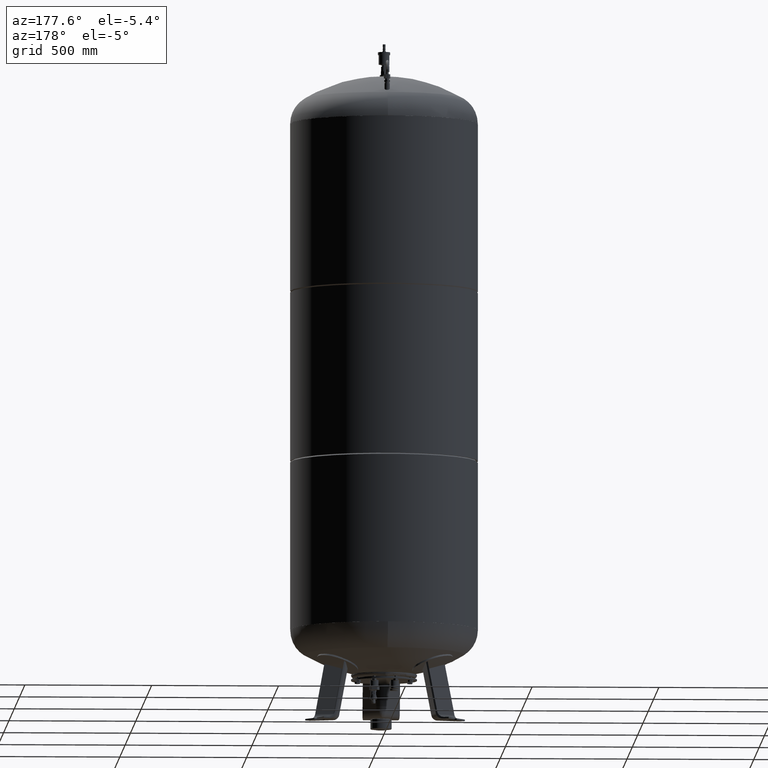
[diagram: clean part render]
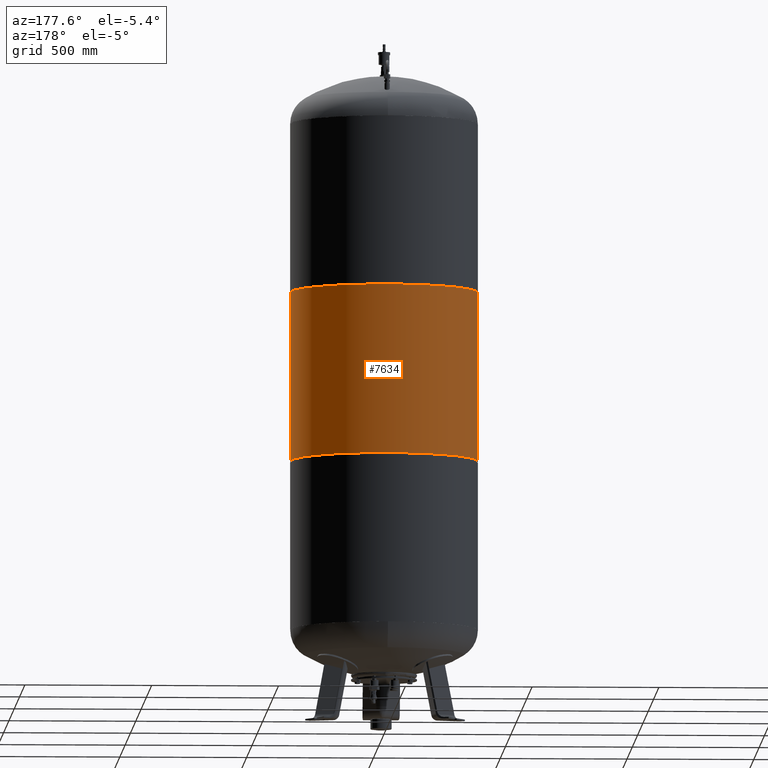
[diagram: same view with one face highlighted and labeled with its STEP entity id]
A machine part, auxiliary view. The second image highlights one B-rep face of the part: STEP entity #7634.
In plain terms, the highlighted cylindrical surface (partial cylindrical patch) has radius 370 mm, axis along (0, 0, 1).
Its self-contained STEP definition (entity closure, byte-faithful):
#7434=CARTESIAN_POINT('',(369.999999999999490,0.0,1703.666666666666700));
#7435=VERTEX_POINT('',#7434);
#7436=CARTESIAN_POINT('',(369.999999999999370,0.0,1036.333333333333000));
#7437=VERTEX_POINT('',#7436);
#7438=CARTESIAN_POINT('',(369.999999999999490,0.0,1703.666666666666700));
#7439=DIRECTION('',(0.0,0.0,-1.0));
#7440=VECTOR('',#7439,667.333333333333710);
#7441=LINE('',#7438,#7440);
#7442=EDGE_CURVE('',#7435,#7437,#7441,.T.);
#7444=CARTESIAN_POINT('',(-369.999999999999430,-4.531044E-014,1703.666666666666700));
#7445=VERTEX_POINT('',#7444);
#7453=CARTESIAN_POINT('',(-369.999999999999430,-4.531044E-014,1036.333333333333000));
#7454=VERTEX_POINT('',#7453);
#7455=CARTESIAN_POINT('',(-369.999999999999430,-4.531044E-014,1703.666666666666700));
#7456=DIRECTION('',(0.0,0.0,-1.0));
#7457=VECTOR('',#7456,667.333333333333710);
#7458=LINE('',#7455,#7457);
#7459=EDGE_CURVE('',#7445,#7454,#7458,.T.);
#7602=CARTESIAN_POINT('',(-5.562655E-015,0.0,1036.333333333333000));
#7603=DIRECTION('',(0.0,0.0,1.0));
#7604=DIRECTION('',(1.0,0.0,0.0));
#7605=AXIS2_PLACEMENT_3D('',#7602,#7603,#7604);
#7606=CIRCLE('',#7605,369.999999999999370);
#7607=EDGE_CURVE('',#7437,#7454,#7606,.T.);
#7617=CARTESIAN_POINT('',(0.0,0.0,1370.0));
#7618=DIRECTION('',(1.667129E-017,0.0,1.0));
#7619=DIRECTION('',(1.0,0.0,0.0));
#7620=AXIS2_PLACEMENT_3D('',#7617,#7618,#7619);
#7621=CYLINDRICAL_SURFACE('',#7620,369.999999999999430);
#7622=ORIENTED_EDGE('',*,*,#7442,.T.);
#7623=ORIENTED_EDGE('',*,*,#7607,.T.);
#7624=ORIENTED_EDGE('',*,*,#7459,.F.);
#7625=CARTESIAN_POINT('',(5.562655E-015,0.0,1703.666666666666700));
#7626=DIRECTION('',(0.0,0.0,1.0));
#7627=DIRECTION('',(1.0,0.0,0.0));
#7628=AXIS2_PLACEMENT_3D('',#7625,#7626,#7627);
#7629=CIRCLE('',#7628,369.999999999999490);
#7630=EDGE_CURVE('',#7435,#7445,#7629,.T.);
#7631=ORIENTED_EDGE('',*,*,#7630,.F.);
#7632=EDGE_LOOP('',(#7622,#7623,#7624,#7631));
#7633=FACE_OUTER_BOUND('',#7632,.T.);
#7634=ADVANCED_FACE('',(#7633),#7621,.T.);